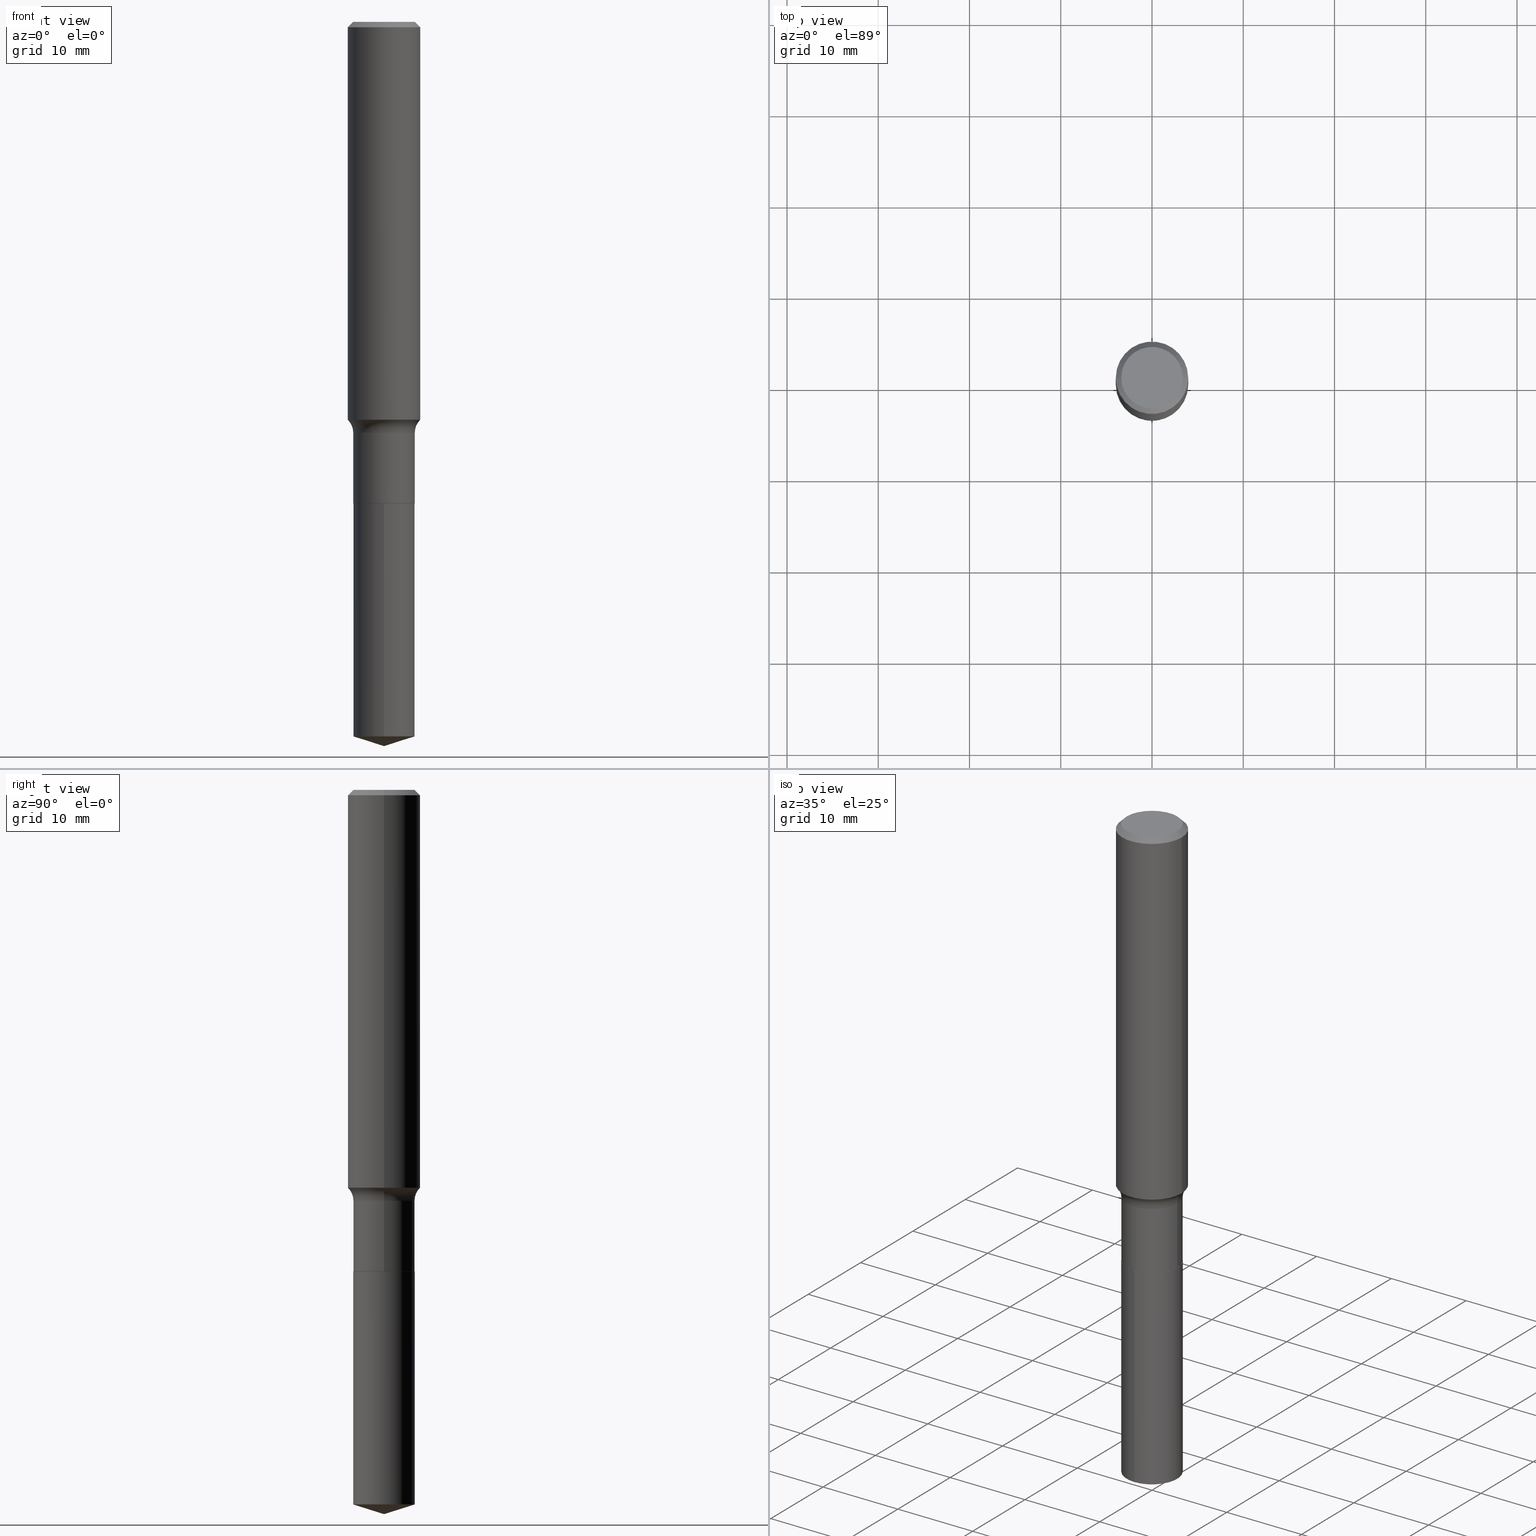
[diagram: canonical four-view strip — front | top / right | iso, engineering-drawing reading convention]
A machine part, canonical four-view strip (front | top / right | iso — engineering-drawing reading convention). The complete STEP part file that produces these views, byte-faithful:
ISO-10303-21;
HEADER;
FILE_DESCRIPTION (( 'STEP AP203' ),
    '1' );
FILE_NAME ('51345.STEP',
    '2024-04-19T12:49:59',
    ( '' ),
    ( '' ),
    'SwSTEP 2.0',
    'SolidWorks 2023',
    '' );
FILE_SCHEMA (( 'CONFIG_CONTROL_DESIGN' ));
ENDSEC;

DATA;
#1 = DIRECTION ( 'NONE',  ( -2.445468806185136877E-29, 3.491481338843145188E-15, 1.000000000000000000 ) ) ;
#2 = DIRECTION ( 'NONE',  ( -2.445468806185136597E-29, 3.491481338843145583E-15, 1.000000000000000000 ) ) ;
#3 = PERSON_AND_ORGANIZATION ( #316, #402 ) ;
#4 = DIRECTION ( 'NONE',  ( -2.445468806185136597E-29, 3.491481338843145583E-15, 1.000000000000000000 ) ) ;
#5 = ADVANCED_FACE ( 'NONE', ( #99 ), #148, .F. ) ;
#6 = CARTESIAN_POINT ( 'NONE',  ( 4.198742512749911832E-29, -5.994691526138346119E-15, -1.716947892416519350 ) ) ;
#7 = CONICAL_SURFACE ( 'NONE', #20, 124.8659371009157582, 1.265363707695893236 ) ;
#8 = DATE_AND_TIME ( #307, #48 ) ;
#9 = LINE ( 'NONE', #346, #118 ) ;
#10 = DIRECTION ( 'NONE',  ( -2.445468806185136597E-29, 3.491481338843145583E-15, 1.000000000000000000 ) ) ;
#11 = PRODUCT ( '51345', '51345', '', ( #340 ) ) ;
#12 = APPROVAL_ROLE ( '' ) ;
#13 = FACE_OUTER_BOUND ( 'NONE', #489, .T. ) ;
#14 = VECTOR ( 'NONE', #433, 39.37007874015748143 ) ;
#15 = DIRECTION ( 'NONE',  ( -2.444881606690316001E-29, 3.492322241941048176E-15, 1.000000000000000000 ) ) ;
#16 = FACE_OUTER_BOUND ( 'NONE', #287, .T. ) ;
#17 = FACE_OUTER_BOUND ( 'NONE', #217, .T. ) ;
#18 = EDGE_CURVE ( 'NONE', #268, #259, #308, .T. ) ;
#19 = ORIENTED_EDGE ( 'NONE', *, *, #275, .F. ) ;
#20 = AXIS2_PLACEMENT_3D ( 'NONE', #238, #271, #114 ) ;
#21 = DIRECTION ( 'NONE',  ( -2.445468806185136597E-29, 3.491481338843145583E-15, 1.000000000000000000 ) ) ;
#22 = ORIENTED_EDGE ( 'NONE', *, *, #246, .T. ) ;
#23 = LINE ( 'NONE', #129, #175 ) ;
#24 = ORIENTED_EDGE ( 'NONE', *, *, #301, .T. ) ;
#25 = LINE ( 'NONE', #185, #72 ) ;
#26 = ORIENTED_EDGE ( 'NONE', *, *, #339, .T. ) ;
#27 = AXIS2_PLACEMENT_3D ( 'NONE', #326, #123, #52 ) ;
#28 = CARTESIAN_POINT ( 'NONE',  ( 9.436007530894885901E-16, 0.1327999999999927572, -2.078100000000000502 ) ) ;
#29 = ORIENTED_EDGE ( 'NONE', *, *, #45, .T. ) ;
#30 = EDGE_LOOP ( 'NONE', ( #50, #105, #187, #36 ) ) ;
#31 = EDGE_LOOP ( 'NONE', ( #406, #304 ) ) ;
#32 = DIRECTION ( 'NONE',  ( 1.000000000000000000, -6.982962677686263555E-15, 0.000000000000000000 ) ) ;
#33 = ORIENTED_EDGE ( 'NONE', *, *, #18, .F. ) ;
#34 = AXIS2_PLACEMENT_3D ( 'NONE', #233, #322, #347 ) ;
#35 = DATE_AND_TIME ( #272, #446 ) ;
#36 = ORIENTED_EDGE ( 'NONE', *, *, #60, .T. ) ;
#37 = CC_DESIGN_PERSON_AND_ORGANIZATION_ASSIGNMENT ( #41, #159, ( #262 ) ) ;
#38 = DIRECTION ( 'NONE',  ( -6.982962677686265133E-15, -1.000000000000000000, 4.114228906120878260E-15 ) ) ;
#39 = DIRECTION ( 'NONE',  ( -0.7071067811865453523, 2.468850131082234184E-15, -0.7071067811865496822 ) ) ;
#40 = AXIS2_PLACEMENT_3D ( 'NONE', #312, #458, #196 ) ;
#41 = PERSON_AND_ORGANIZATION ( #316, #402 ) ;
#42 = PLANE ( 'NONE',  #342 ) ;
#43 = APPROVAL_STATUS ( 'not_yet_approved' ) ;
#44 = LINE ( 'NONE', #384, #300 ) ;
#45 = EDGE_CURVE ( 'NONE', #428, #90, #152, .T. ) ;
#46 = CARTESIAN_POINT ( 'NONE',  ( -0.1562500000000001110, 1.110223024625157329E-15, -7.685836078523295364E-30 ) ) ;
#47 = AXIS2_PLACEMENT_3D ( 'NONE', #191, #4, #273 ) ;
#48 = LOCAL_TIME ( 8, 49, 59.00000000000000000, #320 ) ;
#49 = DIRECTION ( 'NONE',  ( -2.438088387897960049E-29, 3.491481338843145188E-15, 1.000000000000000000 ) ) ;
#50 = ORIENTED_EDGE ( 'NONE', *, *, #463, .F. ) ;
#51 = ADVANCED_FACE ( 'NONE', ( #264 ), #440, .T. ) ;
#52 = DIRECTION ( 'NONE',  ( -6.982962677686265133E-15, -1.000000000000000000, 3.500519750498685105E-15 ) ) ;
#53 = ORIENTED_EDGE ( 'NONE', *, *, #288, .T. ) ;
#54 = CARTESIAN_POINT ( 'NONE',  ( -0.1562500000000000000, -1.928038535383583157E-15, -0.02343750000000013878 ) ) ;
#55 = ORIENTED_EDGE ( 'NONE', *, *, #275, .T. ) ;
#56 = DIRECTION ( 'NONE',  ( 1.000000000000000000, -6.982962677686267499E-15, 0.000000000000000000 ) ) ;
#57 = ORIENTED_EDGE ( 'NONE', *, *, #463, .T. ) ;
#58 = CARTESIAN_POINT ( 'NONE',  ( -0.1327999999999999736, 9.436007530894128594E-16, -6.532345799858513932E-30 ) ) ;
#59 = EDGE_LOOP ( 'NONE', ( #486, #410, #369, #336 ) ) ;
#60 = EDGE_CURVE ( 'NONE', #86, #363, #490, .T. ) ;
#61 = CARTESIAN_POINT ( 'NONE',  ( -9.273374435966853408E-16, -0.1328000000000072456, -2.078099999999999614 ) ) ;
#62 = ORIENTED_EDGE ( 'NONE', *, *, #288, .F. ) ;
#63 =( LENGTH_UNIT ( ) NAMED_UNIT ( * ) SI_UNIT ( $, .METRE. ) );
#64 = AXIS2_PLACEMENT_3D ( 'NONE', #333, #343, #438 ) ;
#65 = VERTEX_POINT ( 'NONE', #67 ) ;
#66 = ORIENTED_EDGE ( 'NONE', *, *, #421, .T. ) ;
#67 = CARTESIAN_POINT ( 'NONE',  ( 0.1323000000000000009, -8.179493332507835465E-15, -2.078100000000000058 ) ) ;
#68 = SECURITY_CLASSIFICATION_LEVEL ( 'unclassified' ) ;
#69 = CC_DESIGN_PERSON_AND_ORGANIZATION_ASSIGNMENT ( #194, #150, ( #293 ) ) ;
#70 = ORIENTED_EDGE ( 'NONE', *, *, #301, .F. ) ;
#71 = AXIS2_PLACEMENT_3D ( 'NONE', #6, #389, #388 ) ;
#72 = VECTOR ( 'NONE', #337, 39.37007874015749564 ) ;
#73 = EDGE_CURVE ( 'NONE', #259, #268, #423, .T. ) ;
#74 = APPROVAL_STATUS ( 'not_yet_approved' ) ;
#75 = CARTESIAN_POINT ( 'NONE',  ( 0.1328125000000000000, -1.032472148179985084E-15, 3.252968060242010686E-18 ) ) ;
#76 = APPROVAL_STATUS ( 'not_yet_approved' ) ;
#77 = CARTESIAN_POINT ( 'NONE',  ( 9.436007530894881956E-16, 0.1327999999999892322, -3.083128320836872494 ) ) ;
#78 = DIRECTION ( 'NONE',  ( -2.444881606690316001E-29, 3.492322241941048570E-15, 1.000000000000000000 ) ) ;
#79 = CONICAL_SURFACE ( 'NONE', #103, 0.1323000000000000009, 0.7853981633975678500 ) ;
#80 = AXIS2_PLACEMENT_3D ( 'NONE', #413, #335, #485 ) ;
#81 = DATE_AND_TIME ( #231, #146 ) ;
#82 = EDGE_CURVE ( 'NONE', #65, #434, #9, .T. ) ;
#83 = CARTESIAN_POINT ( 'NONE',  ( -7.955031918821650812E-47, 1.135767727816383927E-32, 3.252968060235157842E-18 ) ) ;
#84 = CARTESIAN_POINT ( 'NONE',  ( 5.081928726133333135E-29, -7.255647370249941067E-15, -2.078100000000000058 ) ) ;
#85 = DIRECTION ( 'NONE',  ( -2.445468806185136597E-29, 3.491481338843145583E-15, 1.000000000000000000 ) ) ;
#86 = VERTEX_POINT ( 'NONE', #117 ) ;
#87 = AXIS2_PLACEMENT_3D ( 'NONE', #407, #180, #488 ) ;
#88 = ADVANCED_FACE ( 'NONE', ( #454 ), #120, .T. ) ;
#89 = FACE_OUTER_BOUND ( 'NONE', #230, .T. ) ;
#90 = VERTEX_POINT ( 'NONE', #77 ) ;
#91 = DIRECTION ( 'NONE',  ( -6.982962677686266711E-15, -1.000000000000000000, 3.491481338843145583E-15 ) ) ;
#92 = CARTESIAN_POINT ( 'NONE',  ( 5.081928726133333135E-29, -7.255647370249941067E-15, -2.078100000000000058 ) ) ;
#93 = ORIENTED_EDGE ( 'NONE', *, *, #208, .T. ) ;
#94 = AXIS2_PLACEMENT_3D ( 'NONE', #294, #91, #211 ) ;
#95 = AXIS2_PLACEMENT_3D ( 'NONE', #441, #376, #98 ) ;
#96 = CARTESIAN_POINT ( 'NONE',  ( 7.539103981950252717E-29, -1.076553012888921088E-14, -3.083128320836871605 ) ) ;
#97 = ORIENTED_EDGE ( 'NONE', *, *, #246, .F. ) ;
#98 = DIRECTION ( 'NONE',  ( 1.000000000000000000, -6.982962677686265922E-15, 0.000000000000000000 ) ) ;
#99 = FACE_OUTER_BOUND ( 'NONE', #330, .T. ) ;
#100 = CARTESIAN_POINT ( 'NONE',  ( -0.1328125000000000000, 9.683405275697749214E-16, 3.252968060228529177E-18 ) ) ;
#101 = CARTESIAN_POINT ( 'NONE',  ( -3.977515959410825406E-47, 5.678838639081919634E-33, 1.626484030117578921E-18 ) ) ;
#102 = ADVANCED_FACE ( 'NONE', ( #278 ), #382, .T. ) ;
#103 = AXIS2_PLACEMENT_3D ( 'NONE', #166, #21, #169 ) ;
#104 = LENGTH_MEASURE_WITH_UNIT ( LENGTH_MEASURE( 0.02539999999999999897 ), #63 );
#105 = ORIENTED_EDGE ( 'NONE', *, *, #475, .F. ) ;
#106 = DIRECTION ( 'NONE',  ( -1.000000000000000000, 6.982962677686266711E-15, 0.000000000000000000 ) ) ;
#107 = ORIENTED_EDGE ( 'NONE', *, *, #371, .F. ) ;
#108 = EDGE_LOOP ( 'NONE', ( #19, #248, #245 ) ) ;
#109 = SHAPE_DEFINITION_REPRESENTATION ( #189, #443 ) ;
#110 = DIRECTION ( 'NONE',  ( -2.445468806185136597E-29, 3.491481338843145583E-15, 1.000000000000000000 ) ) ;
#111 = CIRCLE ( 'NONE', #277, 0.1323000000000000009 ) ;
#112 = PERSON_AND_ORGANIZATION ( #316, #402 ) ;
#113 = CARTESIAN_POINT ( 'NONE',  ( 9.436007530894637409E-16, 0.1327999999999927294, -2.078100000000000502 ) ) ;
#114 = DIRECTION ( 'NONE',  ( -6.982962677686265133E-15, -1.000000000000000000, 3.500519750498685105E-15 ) ) ;
#115 = MANIFOLD_SOLID_BREP ( 'Body-Move/Copy2[2]', #391 ) ;
#116 = APPROVAL_DATE_TIME ( #457, #163 ) ;
#117 = CARTESIAN_POINT ( 'NONE',  ( 0.1327999999999999736, -7.116686412963979916E-15, -1.772700000000000164 ) ) ;
#118 = VECTOR ( 'NONE', #280, 39.37007874015748143 ) ;
#119 = TOROIDAL_SURFACE ( 'NONE', #34, 0.2107999999999999319, 0.07799999999999999989 ) ;
#120 = CYLINDRICAL_SURFACE ( 'NONE', #235, 0.1327999999999999736 ) ;
#121 = CARTESIAN_POINT ( 'NONE',  ( 0.1562500000000000000, -1.153784406030938435E-15, -0.02343750000000013878 ) ) ;
#122 = ADVANCED_FACE ( 'NONE', ( #239 ), #158, .T. ) ;
#123 = DIRECTION ( 'NONE',  ( -2.444881606690316001E-29, 3.492322241941048176E-15, 1.000000000000000000 ) ) ;
#124 = ORIENTED_EDGE ( 'NONE', *, *, #82, .T. ) ;
#125 = VECTOR ( 'NONE', #78, 39.37007874015748143 ) ;
#126 = APPROVAL_PERSON_ORGANIZATION ( #157, #183, #381 ) ;
#127 = DIRECTION ( 'NONE',  ( 2.445468806185136597E-29, -3.491481338843145583E-15, -1.000000000000000000 ) ) ;
#128 = ORIENTED_EDGE ( 'NONE', *, *, #481, .F. ) ;
#129 = CARTESIAN_POINT ( 'NONE',  ( -0.1323000000000000009, -6.315599330839329500E-15, -2.078100000000000058 ) ) ;
#130 = ORIENTED_EDGE ( 'NONE', *, *, #135, .T. ) ;
#131 = ADVANCED_FACE ( 'NONE', ( #460 ), #42, .F. ) ;
#132 = DIRECTION ( 'NONE',  ( 1.000000000000000000, -6.982962677686267499E-15, 0.000000000000000000 ) ) ;
#133 = ORIENTED_EDGE ( 'NONE', *, *, #481, .T. ) ;
#134 = VECTOR ( 'NONE', #367, 39.37007874015748143 ) ;
#135 = EDGE_CURVE ( 'NONE', #205, #479, #176, .T. ) ;
#136 =( NAMED_UNIT ( * ) PLANE_ANGLE_UNIT ( ) SI_UNIT ( $, .RADIAN. ) );
#137 = ORIENTED_EDGE ( 'NONE', *, *, #371, .T. ) ;
#138 = FACE_OUTER_BOUND ( 'NONE', #59, .T. ) ;
#139 = EDGE_LOOP ( 'NONE', ( #374, #128, #452, #173 ) ) ;
#140 = EDGE_CURVE ( 'NONE', #297, #415, #168, .T. ) ;
#141 = CARTESIAN_POINT ( 'NONE',  ( 0.1562500000000002220, -7.085779444526826081E-15, -1.716947892416519350 ) ) ;
#142 = CARTESIAN_POINT ( 'NONE',  ( 5.731567514496448055E-31, -8.183159387913671455E-17, -0.02343750000000013878 ) ) ;
#143 = CLOSED_SHELL ( 'NONE', ( #122, #372, #154, #318, #131 ) ) ;
#144 = AXIS2_PLACEMENT_3D ( 'NONE', #83, #110, #350 ) ;
#145 = DIRECTION ( 'NONE',  ( -2.444881606690316001E-29, 3.492322241941048570E-15, 1.000000000000000000 ) ) ;
#146 = LOCAL_TIME ( 8, 49, 59.00000000000000000, #419 ) ;
#147 = ORIENTED_EDGE ( 'NONE', *, *, #323, .T. ) ;
#148 = PLANE ( 'NONE',  #240 ) ;
#149 = ADVANCED_FACE ( 'NONE', ( #151 ), #119, .F. ) ;
#150 = PERSON_AND_ORGANIZATION_ROLE ( 'creator' ) ;
#151 = FACE_OUTER_BOUND ( 'NONE', #30, .T. ) ;
#152 = CIRCLE ( 'NONE', #218, 0.1328000000000000014 ) ;
#153 = COORDINATED_UNIVERSAL_TIME_OFFSET ( 5, 0, .BEHIND. ) ;
#154 = ADVANCED_FACE ( 'NONE', ( #386 ), #7, .T. ) ;
#155 = CIRCLE ( 'NONE', #429, 0.1328000000000000014 ) ;
#156 = CARTESIAN_POINT ( 'NONE',  ( 5.081928726133333135E-29, -7.255647370249941067E-15, -2.078100000000000058 ) ) ;
#157 = PERSON_AND_ORGANIZATION ( #316, #402 ) ;
#158 = CYLINDRICAL_SURFACE ( 'NONE', #464, 0.1328000000000000014 ) ;
#159 = PERSON_AND_ORGANIZATION_ROLE ( 'classification_officer' ) ;
#160 = DIRECTION ( 'NONE',  ( -2.445468806185136597E-29, 3.491481338843145583E-15, 1.000000000000000000 ) ) ;
#161 = CONICAL_SURFACE ( 'NONE', #436, 0.1323000000000000009, 0.7853981633975678500 ) ;
#162 = CIRCLE ( 'NONE', #80, 0.1328125000000000000 ) ;
#163 = APPROVAL ( #74, 'UNSPECIFIED' ) ;
#164 = EDGE_CURVE ( 'NONE', #479, #268, #44, .T. ) ;
#165 = DIRECTION ( 'NONE',  ( 1.000000000000000000, -6.982962677686267499E-15, 0.000000000000000000 ) ) ;
#166 = CARTESIAN_POINT ( 'NONE',  ( 5.081928726133333135E-29, -7.255647370249941067E-15, -2.078100000000000058 ) ) ;
#167 = FACE_OUTER_BOUND ( 'NONE', #292, .T. ) ;
#168 = CIRCLE ( 'NONE', #71, 0.1562500000000002220 ) ;
#169 = DIRECTION ( 'NONE',  ( 1.000000000000000000, -6.982962677686267499E-15, 0.000000000000000000 ) ) ;
#170 = EDGE_LOOP ( 'NONE', ( #70, #468, #66, #33 ) ) ;
#171 = EDGE_CURVE ( 'NONE', #434, #86, #200, .T. ) ;
#172 = LINE ( 'NONE', #291, #455 ) ;
#173 = ORIENTED_EDGE ( 'NONE', *, *, #18, .T. ) ;
#174 = ORIENTED_EDGE ( 'NONE', *, *, #409, .F. ) ;
#175 = VECTOR ( 'NONE', #393, 39.37007874015748143 ) ;
#176 = CIRCLE ( 'NONE', #144, 0.1328125000000000000 ) ;
#177 = PRODUCT_DEFINITION_FORMATION_WITH_SPECIFIED_SOURCE ( 'ANY', '', #11, .NOT_KNOWN. ) ;
#178 = DIRECTION ( 'NONE',  ( 2.445468806185136597E-29, -3.491481338843145583E-15, -1.000000000000000000 ) ) ;
#179 = EDGE_LOOP ( 'NONE', ( #380, #24, #359, #474 ) ) ;
#180 = DIRECTION ( 'NONE',  ( -2.445468806185136597E-29, 3.491481338843145583E-15, 1.000000000000000000 ) ) ;
#181 = EDGE_LOOP ( 'NONE', ( #341, #334, #250, #397 ) ) ;
#182 = APPLICATION_PROTOCOL_DEFINITION ( 'international standard', 'config_control_design', 1994, #451 ) ;
#183 = APPROVAL ( #76, 'UNSPECIFIED' ) ;
#184 = DIRECTION ( 'NONE',  ( -2.445468806185136597E-29, 3.491481338843145583E-15, 1.000000000000000000 ) ) ;
#185 = CARTESIAN_POINT ( 'NONE',  ( 7.640255020907238065E-29, -1.091350700606577777E-14, -3.125000000000000000 ) ) ;
#186 = CIRCLE ( 'NONE', #95, 0.1562500000000002220 ) ;
#187 = ORIENTED_EDGE ( 'NONE', *, *, #270, .T. ) ;
#188 = ADVANCED_FACE ( 'NONE', ( #13 ), #251, .F. ) ;
#189 = PRODUCT_DEFINITION_SHAPE ( 'NONE', 'NONE',  #293 ) ;
#190 = PERSON_AND_ORGANIZATION ( #316, #402 ) ;
#191 = CARTESIAN_POINT ( 'NONE',  ( 0.000000000000000000, 0.000000000000000000, 0.000000000000000000 ) ) ;
#192 = DIRECTION ( 'NONE',  ( 2.444881606690315441E-29, -3.492322241941048570E-15, -1.000000000000000000 ) ) ;
#193 = CC_DESIGN_DATE_AND_TIME_ASSIGNMENT ( #35, #354, ( #293 ) ) ;
#194 = PERSON_AND_ORGANIZATION ( #316, #402 ) ;
#195 = CONICAL_SURFACE ( 'NONE', #261, 0.1562500000000000000, 0.7853981633974452814 ) ;
#196 = DIRECTION ( 'NONE',  ( -6.982962677686265133E-15, -1.000000000000000000, 4.114228906120878260E-15 ) ) ;
#197 = DIMENSIONAL_EXPONENTS ( 1.000000000000000000, 0.000000000000000000, 0.000000000000000000, 0.000000000000000000, 0.000000000000000000, 0.000000000000000000, 0.000000000000000000 ) ;
#198 = CALENDAR_DATE ( 2024, 19, 4 ) ;
#199 = FACE_OUTER_BOUND ( 'NONE', #31, .T. ) ;
#200 = LINE ( 'NONE', #418, #321 ) ;
#201 = CARTESIAN_POINT ( 'NONE',  ( -0.1327999999999999736, -5.778024546384469755E-15, -1.772700000000000164 ) ) ;
#202 = CONICAL_SURFACE ( 'NONE', #27, 124.8659371009157582, 1.265363707695893236 ) ;
#203 =( GEOMETRIC_REPRESENTATION_CONTEXT ( 3 ) GLOBAL_UNCERTAINTY_ASSIGNED_CONTEXT ( ( #215 ) ) GLOBAL_UNIT_ASSIGNED_CONTEXT ( ( #263, #136, #224 ) ) REPRESENTATION_CONTEXT ( 'NONE', 'WORKASPACE' ) );
#204 = DIRECTION ( 'NONE',  ( 6.776566513254260504E-15, 0.9537169507482292641, 0.3007057995042656806 ) ) ;
#205 = VERTEX_POINT ( 'NONE', #75 ) ;
#206 = CARTESIAN_POINT ( 'NONE',  ( -9.273374435966853408E-16, -0.1328000000000072456, -2.078099999999999614 ) ) ;
#207 = DIRECTION ( 'NONE',  ( -6.982962677686265133E-15, -1.000000000000000000, 4.114228906120878260E-15 ) ) ;
#208 = EDGE_CURVE ( 'NONE', #437, #290, #445, .T. ) ;
#209 = AXIS2_PLACEMENT_3D ( 'NONE', #478, #476, #331 ) ;
#210 = VECTOR ( 'NONE', #145, 39.37007874015748143 ) ;
#211 = DIRECTION ( 'NONE',  ( 1.000000000000000000, -6.982962677686270655E-15, 0.000000000000000000 ) ) ;
#212 = ORIENTED_EDGE ( 'NONE', *, *, #270, .F. ) ;
#213 = ORIENTED_EDGE ( 'NONE', *, *, #267, .F. ) ;
#214 = CC_DESIGN_PERSON_AND_ORGANIZATION_ASSIGNMENT ( #3, #385, ( #177 ) ) ;
#215 = UNCERTAINTY_MEASURE_WITH_UNIT (LENGTH_MEASURE( 1.000000000000000082E-05 ), #263, 'distance_accuracy_value', 'NONE');
#216 = CARTESIAN_POINT ( 'NONE',  ( 0.1562500000000001110, -1.091087918388479962E-15, 7.619026212181155982E-30 ) ) ;
#217 = EDGE_LOOP ( 'NONE', ( #97, #477, #283, #491 ) ) ;
#218 = AXIS2_PLACEMENT_3D ( 'NONE', #338, #299, #444 ) ;
#219 = CIRCLE ( 'NONE', #209, 0.1328000000000000014 ) ;
#220 = CC_DESIGN_APPROVAL ( #480, ( #177 ) ) ;
#221 = LINE ( 'NONE', #58, #394 ) ;
#222 = ORIENTED_EDGE ( 'NONE', *, *, #390, .F. ) ;
#223 = CC_DESIGN_PERSON_AND_ORGANIZATION_ASSIGNMENT ( #112, #229, ( #177 ) ) ;
#224 =( NAMED_UNIT ( * ) SI_UNIT ( $, .STERADIAN. ) SOLID_ANGLE_UNIT ( ) );
#225 = DIRECTION ( 'NONE',  ( -1.000000000000000000, 6.982962677686265922E-15, -4.876176775795935793E-29 ) ) ;
#226 = CARTESIAN_POINT ( 'NONE',  ( 5.731567514496448055E-31, -8.183159387913671455E-17, -0.02343750000000013878 ) ) ;
#227 = ORIENTED_EDGE ( 'NONE', *, *, #412, .F. ) ;
#228 = AXIS2_PLACEMENT_3D ( 'NONE', #435, #85, #132 ) ;
#229 = PERSON_AND_ORGANIZATION_ROLE ( 'creator' ) ;
#230 = EDGE_LOOP ( 'NONE', ( #26, #254, #395, #332 ) ) ;
#231 = CALENDAR_DATE ( 2024, 19, 4 ) ;
#232 = CARTESIAN_POINT ( 'NONE',  ( 4.335082552724392030E-29, -6.189348969367244877E-15, -1.772700000000000164 ) ) ;
#233 = CARTESIAN_POINT ( 'NONE',  ( 4.335082552724392030E-29, -6.189348969367244877E-15, -1.772700000000000164 ) ) ;
#234 = COORDINATED_UNIVERSAL_TIME_OFFSET ( 5, 0, .BEHIND. ) ;
#235 = AXIS2_PLACEMENT_3D ( 'NONE', #462, #160, #420 ) ;
#236 = DIRECTION ( 'NONE',  ( -2.445468806185136597E-29, 3.491481338843145583E-15, 1.000000000000000000 ) ) ;
#237 = APPROVAL_ROLE ( '' ) ;
#238 = CARTESIAN_POINT ( 'NONE',  ( -8.861370608558304720E-28, 1.265812421258843461E-13, 36.24507874015748143 ) ) ;
#239 = FACE_OUTER_BOUND ( 'NONE', #243, .T. ) ;
#240 = AXIS2_PLACEMENT_3D ( 'NONE', #101, #344, #225 ) ;
#241 = CARTESIAN_POINT ( 'NONE',  ( 5.081928726133333135E-29, -7.255647370249941067E-15, -2.078100000000000058 ) ) ;
#242 = CIRCLE ( 'NONE', #356, 0.1328000000000000014 ) ;
#243 = EDGE_LOOP ( 'NONE', ( #29, #22, #107, #227 ) ) ;
#244 = LINE ( 'NONE', #46, #362 ) ;
#245 = ORIENTED_EDGE ( 'NONE', *, *, #353, .F. ) ;
#246 = EDGE_CURVE ( 'NONE', #90, #437, #314, .T. ) ;
#247 = DIRECTION ( 'NONE',  ( -2.445468806185136597E-29, 3.491481338843145583E-15, 1.000000000000000000 ) ) ;
#248 = ORIENTED_EDGE ( 'NONE', *, *, #405, .T. ) ;
#249 = DIRECTION ( 'NONE',  ( -2.445468806185136597E-29, 3.491481338843145583E-15, 1.000000000000000000 ) ) ;
#250 = ORIENTED_EDGE ( 'NONE', *, *, #60, .F. ) ;
#251 = TOROIDAL_SURFACE ( 'NONE', #392, 0.2107999999999999319, 0.07799999999999999989 ) ;
#252 = CC_DESIGN_APPROVAL ( #183, ( #262 ) ) ;
#253 = DIRECTION ( 'NONE',  ( -2.444881606690316001E-29, 3.492322241941048176E-15, 1.000000000000000000 ) ) ;
#254 = ORIENTED_EDGE ( 'NONE', *, *, #267, .T. ) ;
#255 = ADVANCED_FACE ( 'NONE', ( #199 ), #352, .F. ) ;
#256 = LINE ( 'NONE', #61, #210 ) ;
#257 = DIRECTION ( 'NONE',  ( -2.445468806185136597E-29, 3.491481338843145583E-15, 1.000000000000000000 ) ) ;
#258 = CARTESIAN_POINT ( 'NONE',  ( 5.080705991730240333E-29, -7.253901629580520352E-15, -2.077600000000000335 ) ) ;
#259 = VERTEX_POINT ( 'NONE', #329 ) ;
#260 = ADVANCED_FACE ( 'NONE', ( #327 ), #195, .T. ) ;
#261 = AXIS2_PLACEMENT_3D ( 'NONE', #473, #127, #467 ) ;
#262 = SECURITY_CLASSIFICATION ( '', '', #68 ) ;
#263 =( CONVERSION_BASED_UNIT ( 'INCH', #104 ) LENGTH_UNIT ( ) NAMED_UNIT ( #197 ) );
#264 = FACE_OUTER_BOUND ( 'NONE', #179, .T. ) ;
#265 = DIRECTION ( 'NONE',  ( 7.105427357601001859E-15, 1.000000000000000000, -3.491481338843145583E-15 ) ) ;
#266 = EDGE_LOOP ( 'NONE', ( #137, #93 ) ) ;
#267 = EDGE_CURVE ( 'NONE', #403, #377, #23, .T. ) ;
#268 = VERTEX_POINT ( 'NONE', #54 ) ;
#269 = APPROVAL_PERSON_ORGANIZATION ( #190, #480, #237 ) ;
#270 = EDGE_CURVE ( 'NONE', #415, #86, #471, .T. ) ;
#271 = DIRECTION ( 'NONE',  ( -2.444881606690316001E-29, 3.492322241941048176E-15, 1.000000000000000000 ) ) ;
#272 = CALENDAR_DATE ( 2024, 19, 4 ) ;
#273 = DIRECTION ( 'NONE',  ( 1.000000000000000000, -6.982962677686266711E-15, 4.876176775795936353E-29 ) ) ;
#274 = DIRECTION ( 'NONE',  ( -2.444881606690316001E-29, 3.492322241941048176E-15, 1.000000000000000000 ) ) ;
#275 = EDGE_CURVE ( 'NONE', #295, #90, #172, .T. ) ;
#276 = PERSON_AND_ORGANIZATION ( #316, #402 ) ;
#277 = AXIS2_PLACEMENT_3D ( 'NONE', #427, #249, #165 ) ;
#278 = FACE_OUTER_BOUND ( 'NONE', #170, .T. ) ;
#279 = ADVANCED_FACE ( 'NONE', ( #89 ), #79, .T. ) ;
#280 = DIRECTION ( 'NONE',  ( 0.7071067811866320607, -2.468850131083142557E-15, 0.7071067811864629737 ) ) ;
#281 = FACE_OUTER_BOUND ( 'NONE', #365, .T. ) ;
#282 = EDGE_CURVE ( 'NONE', #205, #259, #364, .T. ) ;
#283 = ORIENTED_EDGE ( 'NONE', *, *, #412, .T. ) ;
#284 = AXIS2_PLACEMENT_3D ( 'NONE', #408, #184, #414 ) ;
#285 = CARTESIAN_POINT ( 'NONE',  ( 0.000000000000000000, 0.000000000000000000, 0.000000000000000000 ) ) ;
#286 = CC_DESIGN_PERSON_AND_ORGANIZATION_ASSIGNMENT ( #311, #453, ( #11 ) ) ;
#287 = EDGE_LOOP ( 'NONE', ( #399, #55, #470 ) ) ;
#288 = EDGE_CURVE ( 'NONE', #377, #434, #219, .T. ) ;
#289 = DIRECTION ( 'NONE',  ( -6.982962677686265133E-15, -1.000000000000000000, 4.114228906120878260E-15 ) ) ;
#290 = VERTEX_POINT ( 'NONE', #206 ) ;
#291 = CARTESIAN_POINT ( 'NONE',  ( 7.642716939914409515E-29, -1.091001204461027233E-14, -3.125000000000000000 ) ) ;
#292 = EDGE_LOOP ( 'NONE', ( #213, #147, #124, #62 ) ) ;
#293 = PRODUCT_DEFINITION ( 'UNKNOWN', '', #177, #487 ) ;
#294 = CARTESIAN_POINT ( 'NONE',  ( 0.2107999999999999319, -7.661357501823507962E-15, -1.772700000000000164 ) ) ;
#295 = VERTEX_POINT ( 'NONE', #324 ) ;
#296 = CARTESIAN_POINT ( 'NONE',  ( -0.1323000000000000009, -6.312950103665218299E-15, -2.078100000000000058 ) ) ;
#297 = VERTEX_POINT ( 'NONE', #396 ) ;
#298 = CARTESIAN_POINT ( 'NONE',  ( -9.273374435966606889E-16, -0.1328000000000107705, -3.083128320836871161 ) ) ;
#299 = DIRECTION ( 'NONE',  ( -2.444881606690316001E-29, 3.492322241941048176E-15, 1.000000000000000000 ) ) ;
#300 = VECTOR ( 'NONE', #39, 39.37007874015748143 ) ;
#301 = EDGE_CURVE ( 'NONE', #297, #268, #244, .T. ) ;
#302 = CONICAL_SURFACE ( 'NONE', #472, 0.1562500000000000000, 0.7853981633974452814 ) ;
#303 = CARTESIAN_POINT ( 'NONE',  ( -0.2107999999999999319, -4.691524882384953775E-15, -1.772700000000000164 ) ) ;
#304 = ORIENTED_EDGE ( 'NONE', *, *, #323, .F. ) ;
#305 = DIRECTION ( 'NONE',  ( -2.445468806185136597E-29, 3.491481338843145583E-15, 1.000000000000000000 ) ) ;
#306 = ORIENTED_EDGE ( 'NONE', *, *, #171, .T. ) ;
#307 = CALENDAR_DATE ( 2024, 19, 4 ) ;
#308 = CIRCLE ( 'NONE', #368, 0.1562500000000000000 ) ;
#309 = CIRCLE ( 'NONE', #87, 0.1327999999999999736 ) ;
#310 = LOCAL_TIME ( 8, 49, 59.00000000000000000, #461 ) ;
#311 = PERSON_AND_ORGANIZATION ( #316, #402 ) ;
#312 = CARTESIAN_POINT ( 'NONE',  ( 5.081928726133333135E-29, -7.255647370249941067E-15, -2.078100000000000058 ) ) ;
#313 = APPROVAL_DATE_TIME ( #351, #183 ) ;
#314 = LINE ( 'NONE', #113, #125 ) ;
#315 = APPLICATION_PROTOCOL_DEFINITION ( 'international standard', 'config_control_design', 1994, #383 ) ;
#316 = PERSON ( 'UNSPECIFIED', 'UNSPECIFIED', 'UNSPECIFIED', ('UNSPECIFIED'), ('UNSPECIFIED'), ('UNSPECIFIED') ) ;
#317 = CARTESIAN_POINT ( 'NONE',  ( 5.081928726133333135E-29, -7.255647370249941067E-15, -2.078100000000000058 ) ) ;
#318 = ADVANCED_FACE ( 'NONE', ( #17 ), #400, .T. ) ;
#319 = AXIS2_PLACEMENT_3D ( 'NONE', #426, #236, #355 ) ;
#320 = COORDINATED_UNIVERSAL_TIME_OFFSET ( 5, 0, .BEHIND. ) ;
#321 = VECTOR ( 'NONE', #422, 39.37007874015748143 ) ;
#322 = DIRECTION ( 'NONE',  ( -2.445468806185136597E-29, 3.491481338843145583E-15, 1.000000000000000000 ) ) ;
#323 = EDGE_CURVE ( 'NONE', #403, #65, #111, .T. ) ;
#324 = CARTESIAN_POINT ( 'NONE',  ( 7.640255020907238065E-29, -1.091350700606577777E-14, -3.125000000000000000 ) ) ;
#325 = ADVANCED_FACE ( 'NONE', ( #167 ), #161, .T. ) ;
#326 = CARTESIAN_POINT ( 'NONE',  ( -8.861370608558304720E-28, 1.265812421258843461E-13, 36.24507874015748143 ) ) ;
#327 = FACE_OUTER_BOUND ( 'NONE', #139, .T. ) ;
#328 = CC_DESIGN_APPROVAL ( #163, ( #293 ) ) ;
#329 = CARTESIAN_POINT ( 'NONE',  ( 0.1562500000000000000, -1.172919512267615999E-15, -0.02343750000000013878 ) ) ;
#330 = EDGE_LOOP ( 'NONE', ( #133, #130 ) ) ;
#331 = DIRECTION ( 'NONE',  ( 1.000000000000000000, -6.982962677686263555E-15, 0.000000000000000000 ) ) ;
#332 = ORIENTED_EDGE ( 'NONE', *, *, #82, .F. ) ;
#333 = CARTESIAN_POINT ( 'NONE',  ( 0.000000000000000000, 0.000000000000000000, 0.000000000000000000 ) ) ;
#334 = ORIENTED_EDGE ( 'NONE', *, *, #409, .T. ) ;
#335 = DIRECTION ( 'NONE',  ( -2.445468806185136597E-29, 3.491481338843145583E-15, 1.000000000000000000 ) ) ;
#336 = ORIENTED_EDGE ( 'NONE', *, *, #164, .F. ) ;
#337 = DIRECTION ( 'NONE',  ( -6.659769872151635244E-15, -0.9537169507482271547, 0.3007057995042722864 ) ) ;
#338 = CARTESIAN_POINT ( 'NONE',  ( 7.539103981950252717E-29, -1.076553012888921088E-14, -3.083128320836871605 ) ) ;
#339 = EDGE_CURVE ( 'NONE', #65, #403, #483, .T. ) ;
#340 = MECHANICAL_CONTEXT ( 'NONE', #451, 'mechanical' ) ;
#341 = ORIENTED_EDGE ( 'NONE', *, *, #401, .T. ) ;
#342 = AXIS2_PLACEMENT_3D ( 'NONE', #156, #192, #425 ) ;
#343 = DIRECTION ( 'NONE',  ( 0.000000000000000000, 0.000000000000000000, 1.000000000000000000 ) ) ;
#344 = DIRECTION ( 'NONE',  ( 2.438088387897960049E-29, -3.491481338843145188E-15, -1.000000000000000000 ) ) ;
#345 = APPROVAL_DATE_TIME ( #8, #480 ) ;
#346 = CARTESIAN_POINT ( 'NONE',  ( 0.1323000000000000009, -8.179493332507835465E-15, -2.078100000000000058 ) ) ;
#347 = DIRECTION ( 'NONE',  ( 1.000000000000000000, -6.982962677686265922E-15, 4.883557194083112901E-29 ) ) ;
#348 = AXIS2_PLACEMENT_3D ( 'NONE', #411, #257, #375 ) ;
#349 = APPROVAL_PERSON_ORGANIZATION ( #276, #163, #12 ) ;
#350 = DIRECTION ( 'NONE',  ( 1.000000000000000000, -6.982962677686268288E-15, 4.876286914311434227E-29 ) ) ;
#351 = DATE_AND_TIME ( #198, #465 ) ;
#352 = PLANE ( 'NONE',  #424 ) ;
#353 = EDGE_CURVE ( 'NONE', #90, #428, #378, .T. ) ;
#354 = DATE_TIME_ROLE ( 'creation_date' ) ;
#355 = DIRECTION ( 'NONE',  ( 1.000000000000000000, -6.982962677686266711E-15, 0.000000000000000000 ) ) ;
#356 = AXIS2_PLACEMENT_3D ( 'NONE', #241, #431, #358 ) ;
#357 = DIRECTION ( 'NONE',  ( -2.445468806185136877E-29, 3.491481338843145188E-15, 1.000000000000000000 ) ) ;
#358 = DIRECTION ( 'NONE',  ( -6.982962677686265133E-15, -1.000000000000000000, 4.114228906120878260E-15 ) ) ;
#359 = ORIENTED_EDGE ( 'NONE', *, *, #73, .F. ) ;
#360 = DIRECTION ( 'NONE',  ( 1.000000000000000000, -6.982962677686266711E-15, 4.876176775795936353E-29 ) ) ;
#361 = CARTESIAN_POINT ( 'NONE',  ( 5.081928726133333135E-29, -7.255647370249941067E-15, -2.078100000000000058 ) ) ;
#362 = VECTOR ( 'NONE', #357, 39.37007874015748143 ) ;
#363 = VERTEX_POINT ( 'NONE', #201 ) ;
#364 = LINE ( 'NONE', #121, #14 ) ;
#365 = EDGE_LOOP ( 'NONE', ( #174, #53, #306, #222 ) ) ;
#366 = ADVANCED_FACE ( 'NONE', ( #281 ), #469, .T. ) ;
#367 = DIRECTION ( 'NONE',  ( -2.445468806185136877E-29, 3.491481338843145188E-15, 1.000000000000000000 ) ) ;
#368 = AXIS2_PLACEMENT_3D ( 'NONE', #142, #2, #484 ) ;
#369 = ORIENTED_EDGE ( 'NONE', *, *, #73, .T. ) ;
#370 = AXIS2_PLACEMENT_3D ( 'NONE', #285, #432, #360 ) ;
#371 = EDGE_CURVE ( 'NONE', #290, #437, #242, .T. ) ;
#372 = ADVANCED_FACE ( 'NONE', ( #16 ), #202, .T. ) ;
#373 = DIRECTION ( 'NONE',  ( -1.000000000000000000, 7.105427357600997914E-15, 0.000000000000000000 ) ) ;
#374 = ORIENTED_EDGE ( 'NONE', *, *, #282, .F. ) ;
#375 = DIRECTION ( 'NONE',  ( 1.000000000000000000, -6.982962677686266711E-15, 4.876176775795936353E-29 ) ) ;
#376 = DIRECTION ( 'NONE',  ( -2.445468806185136597E-29, 3.491481338843145583E-15, 1.000000000000000000 ) ) ;
#377 = VERTEX_POINT ( 'NONE', #404 ) ;
#378 = CIRCLE ( 'NONE', #416, 0.1328000000000000014 ) ;
#379 = DATE_TIME_ROLE ( 'classification_date' ) ;
#380 = ORIENTED_EDGE ( 'NONE', *, *, #475, .T. ) ;
#381 = APPROVAL_ROLE ( '' ) ;
#382 = CYLINDRICAL_SURFACE ( 'NONE', #47, 0.1562500000000001110 ) ;
#383 = APPLICATION_CONTEXT ( 'configuration controlled 3d designs of mechanical parts and assemblies' ) ;
#384 = CARTESIAN_POINT ( 'NONE',  ( -0.1562500000000000000, 1.009256324509342545E-15, -0.02343750000000013878 ) ) ;
#385 = PERSON_AND_ORGANIZATION_ROLE ( 'design_supplier' ) ;
#386 = FACE_OUTER_BOUND ( 'NONE', #108, .T. ) ;
#387 = CALENDAR_DATE ( 2024, 19, 4 ) ;
#388 = DIRECTION ( 'NONE',  ( 1.000000000000000000, -6.982962677686265922E-15, 0.000000000000000000 ) ) ;
#389 = DIRECTION ( 'NONE',  ( -2.445468806185136597E-29, 3.491481338843145583E-15, 1.000000000000000000 ) ) ;
#390 = EDGE_CURVE ( 'NONE', #363, #86, #309, .T. ) ;
#391 = CLOSED_SHELL ( 'NONE', ( #279, #459, #51, #188, #88, #366, #149, #102, #260, #5, #255, #325 ) ) ;
#392 = AXIS2_PLACEMENT_3D ( 'NONE', #232, #10, #466 ) ;
#393 = DIRECTION ( 'NONE',  ( -0.7071067811866320607, 7.493145998870660238E-15, 0.7071067811864629737 ) ) ;
#394 = VECTOR ( 'NONE', #1, 39.37007874015748143 ) ;
#395 = ORIENTED_EDGE ( 'NONE', *, *, #401, .F. ) ;
#396 = CARTESIAN_POINT ( 'NONE',  ( -0.1562500000000002220, -4.884468501513188001E-15, -1.716947892416519350 ) ) ;
#397 = ORIENTED_EDGE ( 'NONE', *, *, #171, .F. ) ;
#398 = DIRECTION ( 'NONE',  ( 1.000000000000000000, -6.982962677686265922E-15, 4.876176775795935793E-29 ) ) ;
#399 = ORIENTED_EDGE ( 'NONE', *, *, #405, .F. ) ;
#400 = CYLINDRICAL_SURFACE ( 'NONE', #492, 0.1328000000000000014 ) ;
#401 = EDGE_CURVE ( 'NONE', #434, #377, #155, .T. ) ;
#402 = ORGANIZATION ( 'UNSPECIFIED', 'UNSPECIFIED', '' ) ;
#403 = VERTEX_POINT ( 'NONE', #296 ) ;
#404 = CARTESIAN_POINT ( 'NONE',  ( -0.1328000000000000014, -5.778024546384469755E-15, -2.077600000000000335 ) ) ;
#405 = EDGE_CURVE ( 'NONE', #295, #428, #25, .T. ) ;
#406 = ORIENTED_EDGE ( 'NONE', *, *, #339, .F. ) ;
#407 = CARTESIAN_POINT ( 'NONE',  ( 4.335082552724392030E-29, -6.189348969367244877E-15, -1.772700000000000164 ) ) ;
#408 = CARTESIAN_POINT ( 'NONE',  ( 4.335082552724392030E-29, -6.189348969367244877E-15, -1.772700000000000164 ) ) ;
#409 = EDGE_CURVE ( 'NONE', #377, #363, #221, .T. ) ;
#410 = ORIENTED_EDGE ( 'NONE', *, *, #282, .T. ) ;
#411 = CARTESIAN_POINT ( 'NONE',  ( 0.000000000000000000, 0.000000000000000000, 0.000000000000000000 ) ) ;
#412 = EDGE_CURVE ( 'NONE', #428, #290, #256, .T. ) ;
#413 = CARTESIAN_POINT ( 'NONE',  ( -7.955031918821650812E-47, 1.135767727816383927E-32, 3.252968060235157842E-18 ) ) ;
#414 = DIRECTION ( 'NONE',  ( 1.000000000000000000, -6.982962677686265133E-15, 0.000000000000000000 ) ) ;
#415 = VERTEX_POINT ( 'NONE', #141 ) ;
#416 = AXIS2_PLACEMENT_3D ( 'NONE', #96, #253, #289 ) ;
#417 = CIRCLE ( 'NONE', #430, 0.07799999999999999989 ) ;
#418 = CARTESIAN_POINT ( 'NONE',  ( 0.1327999999999999736, -9.273374435967360251E-16, 6.475562758257002307E-30 ) ) ;
#419 = COORDINATED_UNIVERSAL_TIME_OFFSET ( 5, 0, .BEHIND. ) ;
#420 = DIRECTION ( 'NONE',  ( 1.000000000000000000, -6.982962677686266711E-15, 4.876176775795936353E-29 ) ) ;
#421 = EDGE_CURVE ( 'NONE', #415, #259, #448, .T. ) ;
#422 = DIRECTION ( 'NONE',  ( -2.445468806185136877E-29, 3.491481338843145188E-15, 1.000000000000000000 ) ) ;
#423 = CIRCLE ( 'NONE', #319, 0.1562500000000000000 ) ;
#424 = AXIS2_PLACEMENT_3D ( 'NONE', #317, #49, #398 ) ;
#425 = DIRECTION ( 'NONE',  ( 6.982962677686265922E-15, 1.000000000000000000, -3.492322241941048570E-15 ) ) ;
#426 = CARTESIAN_POINT ( 'NONE',  ( 5.731567514496448055E-31, -8.183159387913671455E-17, -0.02343750000000013878 ) ) ;
#427 = CARTESIAN_POINT ( 'NONE',  ( 5.081928726133333135E-29, -7.255647370249941067E-15, -2.078100000000000058 ) ) ;
#428 = VERTEX_POINT ( 'NONE', #298 ) ;
#429 = AXIS2_PLACEMENT_3D ( 'NONE', #258, #305, #32 ) ;
#430 = AXIS2_PLACEMENT_3D ( 'NONE', #303, #265, #373 ) ;
#431 = DIRECTION ( 'NONE',  ( -2.444881606690316001E-29, 3.492322241941048176E-15, 1.000000000000000000 ) ) ;
#432 = DIRECTION ( 'NONE',  ( -2.445468806185136597E-29, 3.491481338843145583E-15, 1.000000000000000000 ) ) ;
#433 = DIRECTION ( 'NONE',  ( 0.7071067811865453523, -7.319954787623248157E-15, -0.7071067811865496822 ) ) ;
#434 = VERTEX_POINT ( 'NONE', #482 ) ;
#435 = CARTESIAN_POINT ( 'NONE',  ( 5.081928726133333135E-29, -7.255647370249941067E-15, -2.078100000000000058 ) ) ;
#436 = AXIS2_PLACEMENT_3D ( 'NONE', #361, #247, #56 ) ;
#437 = VERTEX_POINT ( 'NONE', #28 ) ;
#438 = DIRECTION ( 'NONE',  ( 1.000000000000000000, 0.000000000000000000, 0.000000000000000000 ) ) ;
#439 = PRODUCT_RELATED_PRODUCT_CATEGORY ( 'detail', '', ( #11 ) ) ;
#440 = CYLINDRICAL_SURFACE ( 'NONE', #348, 0.1562500000000001110 ) ;
#441 = CARTESIAN_POINT ( 'NONE',  ( 4.198742512749911832E-29, -5.994691526138346119E-15, -1.716947892416519350 ) ) ;
#442 = ORIENTED_EDGE ( 'NONE', *, *, #140, .F. ) ;
#443 = ADVANCED_BREP_SHAPE_REPRESENTATION ( '51345', ( #450, #115, #64 ), #203 ) ;
#444 = DIRECTION ( 'NONE',  ( -6.982962677686265133E-15, -1.000000000000000000, 4.114228906120878260E-15 ) ) ;
#445 = CIRCLE ( 'NONE', #40, 0.1328000000000000014 ) ;
#446 = LOCAL_TIME ( 8, 49, 59.00000000000000000, #153 ) ;
#447 = CC_DESIGN_DATE_AND_TIME_ASSIGNMENT ( #81, #379, ( #262 ) ) ;
#448 = LINE ( 'NONE', #216, #134 ) ;
#449 = ORIENTED_EDGE ( 'NONE', *, *, #390, .T. ) ;
#450 = MANIFOLD_SOLID_BREP ( 'Body-Move/Copy2[1]', #143 ) ;
#451 = APPLICATION_CONTEXT ( 'configuration controlled 3d designs of mechanical parts and assemblies' ) ;
#452 = ORIENTED_EDGE ( 'NONE', *, *, #164, .T. ) ;
#453 = PERSON_AND_ORGANIZATION_ROLE ( 'design_owner' ) ;
#454 = FACE_OUTER_BOUND ( 'NONE', #181, .T. ) ;
#455 = VECTOR ( 'NONE', #204, 39.37007874015748854 ) ;
#456 = CC_DESIGN_SECURITY_CLASSIFICATION ( #262, ( #177 ) ) ;
#457 = DATE_AND_TIME ( #387, #310 ) ;
#458 = DIRECTION ( 'NONE',  ( -2.444881606690316001E-29, 3.492322241941048176E-15, 1.000000000000000000 ) ) ;
#459 = ADVANCED_FACE ( 'NONE', ( #138 ), #302, .T. ) ;
#460 = FACE_OUTER_BOUND ( 'NONE', #266, .T. ) ;
#461 = COORDINATED_UNIVERSAL_TIME_OFFSET ( 5, 0, .BEHIND. ) ;
#462 = CARTESIAN_POINT ( 'NONE',  ( 0.000000000000000000, 0.000000000000000000, 0.000000000000000000 ) ) ;
#463 = EDGE_CURVE ( 'NONE', #297, #363, #417, .T. ) ;
#464 = AXIS2_PLACEMENT_3D ( 'NONE', #84, #274, #38 ) ;
#465 = LOCAL_TIME ( 8, 49, 59.00000000000000000, #234 ) ;
#466 = DIRECTION ( 'NONE',  ( 1.000000000000000000, -6.982962677686265922E-15, 4.883557194083112901E-29 ) ) ;
#467 = DIRECTION ( 'NONE',  ( -1.000000000000000000, 6.982962677686266711E-15, 0.000000000000000000 ) ) ;
#468 = ORIENTED_EDGE ( 'NONE', *, *, #140, .T. ) ;
#469 = CYLINDRICAL_SURFACE ( 'NONE', #370, 0.1327999999999999736 ) ;
#470 = ORIENTED_EDGE ( 'NONE', *, *, #45, .F. ) ;
#471 = CIRCLE ( 'NONE', #94, 0.07799999999999999989 ) ;
#472 = AXIS2_PLACEMENT_3D ( 'NONE', #226, #178, #106 ) ;
#473 = CARTESIAN_POINT ( 'NONE',  ( 5.731567514496448055E-31, -8.183159387913671455E-17, -0.02343750000000013878 ) ) ;
#474 = ORIENTED_EDGE ( 'NONE', *, *, #421, .F. ) ;
#475 = EDGE_CURVE ( 'NONE', #415, #297, #186, .T. ) ;
#476 = DIRECTION ( 'NONE',  ( -2.445468806185136597E-29, 3.491481338843145583E-15, 1.000000000000000000 ) ) ;
#477 = ORIENTED_EDGE ( 'NONE', *, *, #353, .T. ) ;
#478 = CARTESIAN_POINT ( 'NONE',  ( 5.080705991730240333E-29, -7.253901629580520352E-15, -2.077600000000000335 ) ) ;
#479 = VERTEX_POINT ( 'NONE', #100 ) ;
#480 = APPROVAL ( #43, 'UNSPECIFIED' ) ;
#481 = EDGE_CURVE ( 'NONE', #479, #205, #162, .T. ) ;
#482 = CARTESIAN_POINT ( 'NONE',  ( 0.1328000000000000014, -8.181239073177256180E-15, -2.077600000000000335 ) ) ;
#483 = CIRCLE ( 'NONE', #228, 0.1323000000000000009 ) ;
#484 = DIRECTION ( 'NONE',  ( 1.000000000000000000, -6.982962677686266711E-15, 0.000000000000000000 ) ) ;
#485 = DIRECTION ( 'NONE',  ( 1.000000000000000000, -6.982962677686268288E-15, 4.876286914311434227E-29 ) ) ;
#486 = ORIENTED_EDGE ( 'NONE', *, *, #135, .F. ) ;
#487 = DESIGN_CONTEXT ( 'detailed design', #383, 'design' ) ;
#488 = DIRECTION ( 'NONE',  ( 1.000000000000000000, -6.982962677686265133E-15, 0.000000000000000000 ) ) ;
#489 = EDGE_LOOP ( 'NONE', ( #442, #57, #449, #212 ) ) ;
#490 = CIRCLE ( 'NONE', #284, 0.1327999999999999736 ) ;
#491 = ORIENTED_EDGE ( 'NONE', *, *, #208, .F. ) ;
#492 = AXIS2_PLACEMENT_3D ( 'NONE', #92, #15, #207 ) ;
ENDSEC;
END-ISO-10303-21;
